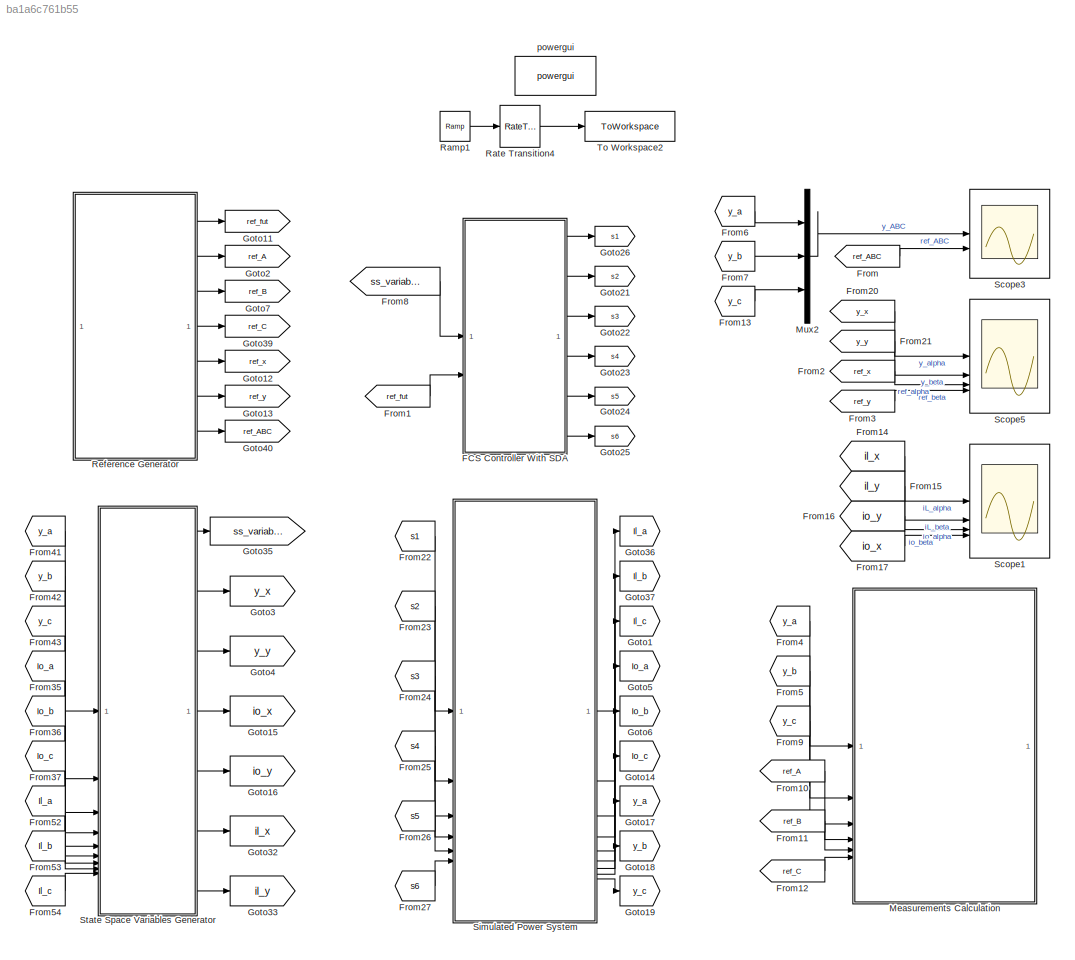
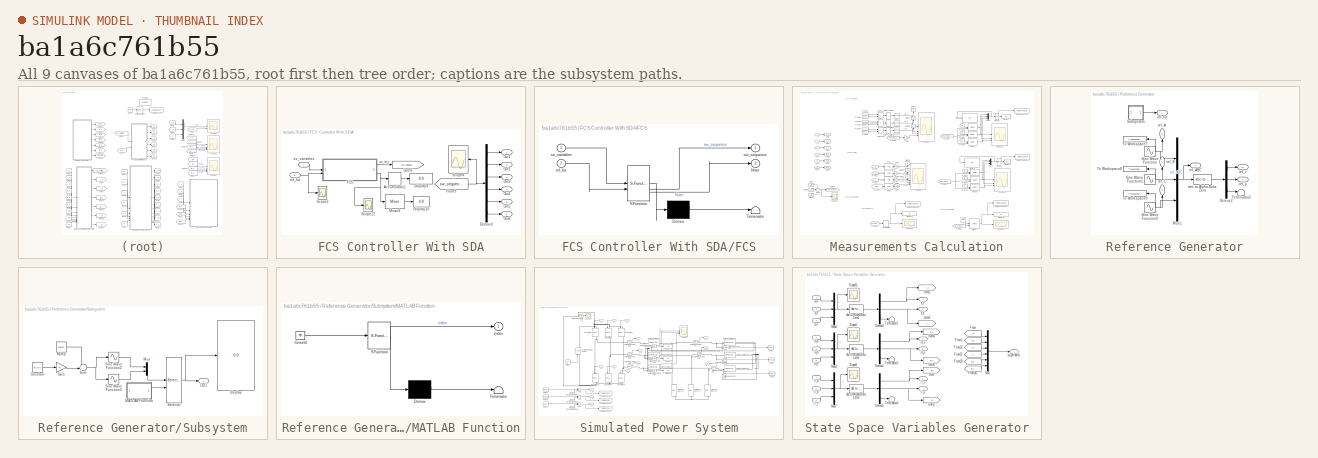
[diagram: thumbnail index - all 9 canvases of the model, root first then tree order]
MODEL slx_ba1a6c761b55
KIND model
CONFIG AbsTol = auto
CONFIG EnableMultiTasking = off
CONFIG FixedStep = Ts
CONFIG InitFcn = script_SDA
CONFIG MaxStep = auto
CONFIG MinStep = auto
CONFIG RelTol = 1e-3
CONFIG SampleTimeConstraint = Unconstrained
CONFIG SolverName = VariableStepAuto
CONFIG StartTime = 0.0
CONFIG StopFcn = % t = table(out.seq, out.t_sim, 'VariableNames', ["Sequência de Vetores","Tempo de Simulação"]);\n% writetable(t,'<userpath>\OneDrive\Documentos\UFSC\COBEP 2023\sequencia_states.xlsx','Sheet','sim_CF_gw')\n% winopen('<userpath>\OneDrive\Documentos\UFSC\COBEP 2023\sequencia_states.xlsx')\n% \n% nome_arq = sprintf("gdq_caso-1_7.csv");\n% writematrix([out.y_d out.y_q out.y_a out.y_b out.y_c out.ref_a out....<+267ch>
CONFIG StopTime = 3*(1/freqHzSin)
BLOCK [SubSystem] FCS Controller With SDA
BLOCK [DiscreteIntegrator] FCS Controller With SDA/Accumulator1
  ICPrevOutput = DiscIntNeverNeededParam
  ICPrevScaledInput = DiscIntNeverNeededParam
  InitialConditionSetting = Auto
  IntegratorMethod = Accumulation: Forward Euler
  SampleTime = Ts
BLOCK [Demux] FCS Controller With SDA/Demux4
  Outputs = 6
BLOCK [Display] FCS Controller With SDA/Display10
  Decimation = 1
BLOCK [Display] FCS Controller With SDA/Display9
  Decimation = 1
BLOCK [SubSystem] FCS Controller With SDA/FCS
  ErrorFcn = Stateflow.Translate.translate
  PermitHierarchicalResolution = ExplicitOnly
  SFBlockType = MATLAB Function
  SystemSampleTime = Ts
  TreatAsAtomicUnit = on
BLOCK [Demux] FCS Controller With SDA/FCS/ Demux 
  Outputs = 1
BLOCK [S-Function] FCS Controller With SDA/FCS/ SFunction 
  EnableBusSupport = on
  FunctionName = sf_sfun
  Parameters = Gamma,H,Niter_max,UpsilonT,W_inv,lSTE,p,u_max,u_min
  PortCounts = [2 3]
  SFcnIsStateOwnerBlock = off
  SFunctionDeploymentMode = off
  Tag = Stateflow S-Function 1
BLOCK [Terminator] FCS Controller With SDA/FCS/ Terminator 
BLOCK [Outport] FCS Controller With SDA/FCS/Niter
  Port = 2
BLOCK [Inport] FCS Controller With SDA/FCS/ref_fut
  Port = 2
BLOCK [Inport] FCS Controller With SDA/FCS/ss_variables
BLOCK [Outport] FCS Controller With SDA/FCS/sw_sequence
BLOCK [From] FCS Controller With SDA/From9
  GotoTag = sw_sequence
BLOCK [Goto] FCS Controller With SDA/Goto6
  GotoTag = sw_sequence
BLOCK [Reference] FCS Controller With SDA/Mean9  REF=dspstat3/Mean
  SourceBlock = dspstat3/Mean
  SourceType = Mean
  UserDataPersistent = on
BLOCK [Outport] FCS Controller With SDA/Out1
BLOCK [Outport] FCS Controller With SDA/Out2
  Port = 2
BLOCK [Outport] FCS Controller With SDA/Out3
  Port = 3
BLOCK [Outport] FCS Controller With SDA/Out4
  Port = 4
BLOCK [Outport] FCS Controller With SDA/Out5
  Port = 5
BLOCK [Outport] FCS Controller With SDA/Out6
  Port = 6
BLOCK [Scope] FCS Controller With SDA/Scope12
  Floating = off
  NumInputPorts = 1
  ScopeSpecificationString = Simulink.scopes.TimeScopeBlockCfg('CurrentConfiguration', extmgr.ConfigurationSet(extmgr.Configuration('Core','General UI',true,'FigureColor',[1 1 1]),extmgr.Configuration('Core','Source UI',true),extmgr.Configuration('Sources','WiredSimulink',true,'DataLoggingVariableName','ScopeData3'),extmgr.Configuration('Visuals','Time Domain',true,'SerializedDisplays',{struct('MinYLimReal','-64.25','MaxYLimR...<+2040ch>
BLOCK [Scope] FCS Controller With SDA/Scope2
  Floating = off
  NumInputPorts = 1
  ScopeSpecificationString = Simulink.scopes.TimeScopeBlockCfg('CurrentConfiguration', extmgr.ConfigurationSet(extmgr.Configuration('Core','General UI',true,'FigureColor',[1 1 1]),extmgr.Configuration('Core','Source UI',true),extmgr.Configuration('Sources','WiredSimulink',true,'DataLoggingVariableName','ScopeData1'),extmgr.Configuration('Visuals','Time Domain',true,'SerializedDisplays',{struct('MinYLimReal','157.88218','MaxYL...<+2119ch>
BLOCK [Scope] FCS Controller With SDA/Scope4
  Floating = off
  NameLocation = top
  NumInputPorts = 1
  ScopeSpecificationString = Simulink.scopes.TimeScopeBlockCfg('CurrentConfiguration', extmgr.ConfigurationSet(extmgr.Configuration('Core','General UI',true,'FigureColor',[1 1 1]),extmgr.Configuration('Core','Source UI',true),extmgr.Configuration('Sources','WiredSimulink',true,'DataLoggingVariableName','ScopeData1'),extmgr.Configuration('Visuals','Time Domain',true,'SerializedDisplays',{struct('MinYLimReal','-0.125','MaxYLimR...<+2117ch>
BLOCK [Inport] FCS Controller With SDA/ref_fut
  Port = 2
BLOCK [Inport] FCS Controller With SDA/ss_variables
BLOCK [From] From
  GotoTag = ref_ABC
BLOCK [From] From1
  GotoTag = ref_fut
BLOCK [From] From10
  GotoTag = ref_A
BLOCK [From] From11
  GotoTag = ref_B
BLOCK [From] From12
  GotoTag = ref_C
BLOCK [From] From13
  GotoTag = y_c
BLOCK [From] From14
  GotoTag = il_x
BLOCK [From] From15
  GotoTag = il_y
BLOCK [From] From16
  GotoTag = io_y
BLOCK [From] From17
  GotoTag = io_x
BLOCK [From] From2
  GotoTag = ref_x
BLOCK [From] From20
  GotoTag = y_x
BLOCK [From] From21
  GotoTag = y_y
BLOCK [From] From22
  GotoTag = s1
  NameLocation = top
BLOCK [From] From23
  GotoTag = s2
  NameLocation = top
BLOCK [From] From24
  GotoTag = s3
  NameLocation = top
BLOCK [From] From25
  GotoTag = s4
  NameLocation = top
BLOCK [From] From26
  GotoTag = s5
  NameLocation = top
BLOCK [From] From27
  GotoTag = s6
  NameLocation = top
BLOCK [From] From3
  GotoTag = ref_y
BLOCK [From] From35
  GotoTag = Io_a
BLOCK [From] From36
  GotoTag = Io_b
BLOCK [From] From37
  GotoTag = Io_c
BLOCK [From] From4
  GotoTag = y_a
BLOCK [From] From41
  GotoTag = y_a
BLOCK [From] From42
  GotoTag = y_b
BLOCK [From] From43
  GotoTag = y_c
BLOCK [From] From5
  GotoTag = y_b
BLOCK [From] From52
  GotoTag = Il_a
BLOCK [From] From53
  GotoTag = Il_b
BLOCK [From] From54
  GotoTag = Il_c
BLOCK [From] From6
  GotoTag = y_a
BLOCK [From] From7
  GotoTag = y_b
BLOCK [From] From8
  GotoTag = ss_variables
BLOCK [From] From9
  GotoTag = y_c
BLOCK [Goto] Goto1
  GotoTag = Il_c
BLOCK [Goto] Goto11
  GotoTag = ref_fut
BLOCK [Goto] Goto12
  GotoTag = ref_x
BLOCK [Goto] Goto13
  GotoTag = ref_y
BLOCK [Goto] Goto14
  GotoTag = Io_c
BLOCK [Goto] Goto15
  GotoTag = io_x
BLOCK [Goto] Goto16
  GotoTag = io_y
BLOCK [Goto] Goto17
  GotoTag = y_a
BLOCK [Goto] Goto18
  GotoTag = y_b
BLOCK [Goto] Goto19
  GotoTag = y_c
BLOCK [Goto] Goto2
  GotoTag = ref_A
BLOCK [Goto] Goto21
  GotoTag = s2
BLOCK [Goto] Goto22
  GotoTag = s3
BLOCK [Goto] Goto23
  GotoTag = s4
BLOCK [Goto] Goto24
  GotoTag = s5
BLOCK [Goto] Goto25
  GotoTag = s6
BLOCK [Goto] Goto26
  GotoTag = s1
BLOCK [Goto] Goto3
  GotoTag = y_x
BLOCK [Goto] Goto32
  GotoTag = il_x
BLOCK [Goto] Goto33
  GotoTag = il_y
BLOCK [Goto] Goto35
  GotoTag = ss_variables
BLOCK [Goto] Goto36
  GotoTag = Il_a
BLOCK [Goto] Goto37
  GotoTag = Il_b
BLOCK [Goto] Goto39
  GotoTag = ref_C
BLOCK [Goto] Goto4
  GotoTag = y_y
BLOCK [Goto] Goto40
  GotoTag = ref_ABC
BLOCK [Goto] Goto5
  GotoTag = Io_a
BLOCK [Goto] Goto6
  GotoTag = Io_b
BLOCK [Goto] Goto7
  GotoTag = ref_B
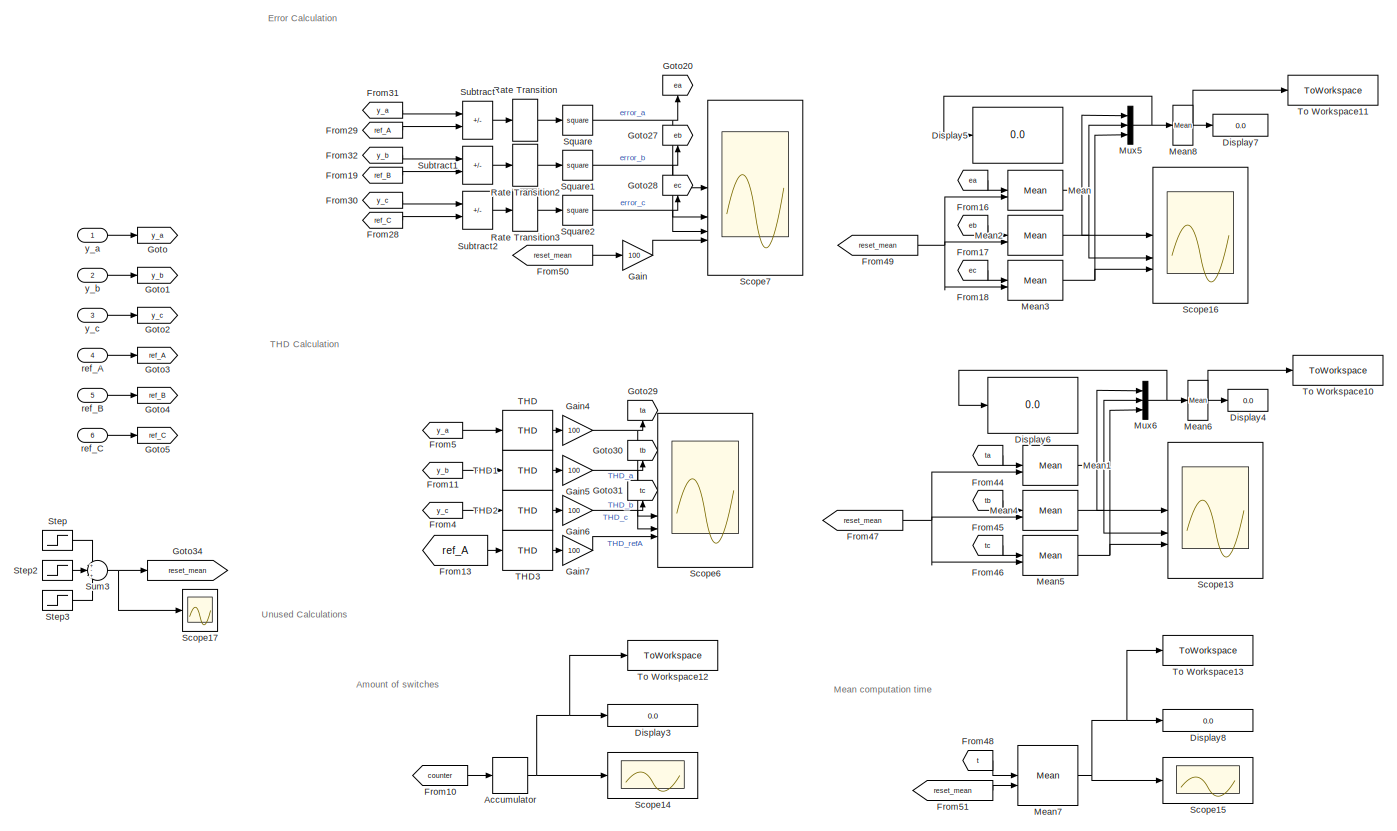
[diagram: Measurements Calculation - part 1/1, most of the canvas]
BLOCK [SubSystem] Measurements Calculation
BLOCK [DiscreteIntegrator] Measurements Calculation/Accumulator
  Commented = on
  ICPrevOutput = DiscIntNeverNeededParam
  ICPrevScaledInput = DiscIntNeverNeededParam
  InitialConditionSetting = Auto
  IntegratorMethod = Accumulation: Forward Euler
  SampleTime = -1
BLOCK [Display] Measurements Calculation/Display3
  Commented = on
  Decimation = 1
  Format = long
BLOCK [Display] Measurements Calculation/Display4
  Decimation = 1
BLOCK [Display] Measurements Calculation/Display5
  Decimation = 1
BLOCK [Display] Measurements Calculation/Display6
  Decimation = 1
BLOCK [Display] Measurements Calculation/Display7
  Decimation = 1
BLOCK [Display] Measurements Calculation/Display8
  Commented = on
  Decimation = 1
  Format = short_e
BLOCK [From] Measurements Calculation/From10
  Commented = on
  GotoTag = counter
BLOCK [From] Measurements Calculation/From11
  GotoTag = y_b
BLOCK [From] Measurements Calculation/From13
  GotoTag = ref_A
BLOCK [From] Measurements Calculation/From16
  GotoTag = ea
BLOCK [From] Measurements Calculation/From17
  GotoTag = eb
BLOCK [From] Measurements Calculation/From18
  GotoTag = ec
BLOCK [From] Measurements Calculation/From19
  GotoTag = ref_B
BLOCK [From] Measurements Calculation/From28
  GotoTag = ref_C
BLOCK [From] Measurements Calculation/From29
  GotoTag = ref_A
BLOCK [From] Measurements Calculation/From30
  GotoTag = y_c
BLOCK [From] Measurements Calculation/From31
  GotoTag = y_a
BLOCK [From] Measurements Calculation/From32
  GotoTag = y_b
BLOCK [From] Measurements Calculation/From4
  GotoTag = y_c
BLOCK [From] Measurements Calculation/From44
  GotoTag = ta
BLOCK [From] Measurements Calculation/From45
  GotoTag = tb
BLOCK [From] Measurements Calculation/From46
  GotoTag = tc
BLOCK [From] Measurements Calculation/From47
  GotoTag = reset_mean
BLOCK [From] Measurements Calculation/From48
  Commented = on
  GotoTag = t
BLOCK [From] Measurements Calculation/From49
  GotoTag = reset_mean
BLOCK [From] Measurements Calculation/From5
  GotoTag = y_a
BLOCK [From] Measurements Calculation/From50
  GotoTag = reset_mean
BLOCK [From] Measurements Calculation/From51
  Commented = on
  GotoTag = reset_mean
BLOCK [Gain] Measurements Calculation/Gain
  Gain = 100
BLOCK [Gain] Measurements Calculation/Gain4
  Gain = 100
BLOCK [Gain] Measurements Calculation/Gain5
  Gain = 100
BLOCK [Gain] Measurements Calculation/Gain6
  Gain = 100
BLOCK [Gain] Measurements Calculation/Gain7
  Gain = 100
BLOCK [Goto] Measurements Calculation/Goto
  GotoTag = y_a
BLOCK [Goto] Measurements Calculation/Goto1
  GotoTag = y_b
BLOCK [Goto] Measurements Calculation/Goto2
  GotoTag = y_c
BLOCK [Goto] Measurements Calculation/Goto20
  GotoTag = ea
  NameLocation = right
BLOCK [Goto] Measurements Calculation/Goto27
  GotoTag = eb
  NameLocation = right
BLOCK [Goto] Measurements Calculation/Goto28
  GotoTag = ec
  NameLocation = right
BLOCK [Goto] Measurements Calculation/Goto29
  GotoTag = ta
  NameLocation = right
BLOCK [Goto] Measurements Calculation/Goto3
  GotoTag = ref_A
BLOCK [Goto] Measurements Calculation/Goto30
  GotoTag = tb
  NameLocation = right
BLOCK [Goto] Measurements Calculation/Goto31
  GotoTag = tc
  NameLocation = right
BLOCK [Goto] Measurements Calculation/Goto34
  GotoTag = reset_mean
BLOCK [Goto] Measurements Calculation/Goto4
  GotoTag = ref_B
BLOCK [Goto] Measurements Calculation/Goto5
  GotoTag = ref_C
BLOCK [Reference] Measurements Calculation/Mean  REF=dspstat3/Mean
  SourceBlock = dspstat3/Mean
  SourceType = Mean
  UserDataPersistent = on
BLOCK [Reference] Measurements Calculation/Mean1  REF=dspstat3/Mean
  SourceBlock = dspstat3/Mean
  SourceType = Mean
  UserDataPersistent = on
BLOCK [Reference] Measurements Calculation/Mean2  REF=dspstat3/Mean
  SourceBlock = dspstat3/Mean
  SourceType = Mean
  UserDataPersistent = on
BLOCK [Reference] Measurements Calculation/Mean3  REF=dspstat3/Mean
  SourceBlock = dspstat3/Mean
  SourceType = Mean
  UserDataPersistent = on
BLOCK [Reference] Measurements Calculation/Mean4  REF=dspstat3/Mean
  SourceBlock = dspstat3/Mean
  SourceType = Mean
  UserDataPersistent = on
BLOCK [Reference] Measurements Calculation/Mean5  REF=dspstat3/Mean
  SourceBlock = dspstat3/Mean
  SourceType = Mean
  UserDataPersistent = on
BLOCK [Reference] Measurements Calculation/Mean6  REF=dspstat3/Mean
  SourceBlock = dspstat3/Mean
  SourceType = Mean
  UserDataPersistent = on
BLOCK [Reference] Measurements Calculation/Mean7  REF=dspstat3/Mean
  Commented = on
  SourceBlock = dspstat3/Mean
  SourceType = Mean
  UserDataPersistent = on
BLOCK [Reference] Measurements Calculation/Mean8  REF=dspstat3/Mean
  SourceBlock = dspstat3/Mean
  SourceType = Mean
  UserDataPersistent = on
BLOCK [Mux] Measurements Calculation/Mux5
  DisplayOption = bar
  Inputs = 3
BLOCK [Mux] Measurements Calculation/Mux6
  DisplayOption = bar
  Inputs = 3
BLOCK [RateTransition] Measurements Calculation/Rate Transition
  OutPortSampleTime = Ts
BLOCK [RateTransition] Measurements Calculation/Rate Transition2
  OutPortSampleTime = Ts
BLOCK [RateTransition] Measurements Calculation/Rate Transition3
  OutPortSampleTime = Ts
BLOCK [Scope] Measurements Calculation/Scope13
  Floating = off
  NumInputPorts = 3
  ScopeSpecificationString = Simulink.scopes.TimeScopeBlockCfg('CurrentConfiguration', extmgr.ConfigurationSet(extmgr.Configuration('Core','General UI',true,'FigureColor',[1 1 1]),extmgr.Configuration('Core','Source UI',true),extmgr.Configuration('Sources','WiredSimulink',true,'DataLoggingVariableName','ScopeData2'),extmgr.Configuration('Visuals','Time Domain',true,'SerializedDisplays',{struct('MinYLimReal','-2.0111','MaxYLim...<+2603ch>
BLOCK [Scope] Measurements Calculation/Scope14
  Commented = on
  Floating = off
  NumInputPorts = 1
  ScopeSpecificationString = Simulink.scopes.TimeScopeBlockCfg('CurrentConfiguration', extmgr.ConfigurationSet(extmgr.Configuration('Core','General UI',true,'FigureColor',[1 1 1]),extmgr.Configuration('Core','Source UI',true),extmgr.Configuration('Sources','WiredSimulink',true,'DataLoggingVariableName','ScopeData1'),extmgr.Configuration('Visuals','Time Domain',true,'SerializedDisplays',{struct('MinYLimReal','-5083.25','MaxYLi...<+2583ch>
BLOCK [Scope] Measurements Calculation/Scope15
  Commented = on
  Floating = off
  NumInputPorts = 1
  ScopeSpecificationString = Simulink.scopes.TimeScopeBlockCfg('CurrentConfiguration', extmgr.ConfigurationSet(extmgr.Configuration('Core','General UI',true,'FigureColor',[1 1 1]),extmgr.Configuration('Core','Source UI',true),extmgr.Configuration('Sources','WiredSimulink',true,'DataLoggingVariableName','ScopeData4'),extmgr.Configuration('Visuals','Time Domain',true,'SerializedDisplays',{struct('MinYLimReal','-0.01387','MaxYLi...<+2549ch>
BLOCK [Scope] Measurements Calculation/Scope16
  Floating = off
  NumInputPorts = 3
  ScopeSpecificationString = Simulink.scopes.TimeScopeBlockCfg('CurrentConfiguration', extmgr.ConfigurationSet(extmgr.Configuration('Core','General UI',true,'FigureColor',[1 1 1]),extmgr.Configuration('Core','Source UI',true),extmgr.Configuration('Sources','WiredSimulink',true,'DataLoggingVariableName','ScopeData1'),extmgr.Configuration('Visuals','Time Domain',true,'SerializedDisplays',{struct('MinYLimReal','-5.02568','MaxYLi...<+2644ch>
BLOCK [Scope] Measurements Calculation/Scope17
  Floating = off
  NumInputPorts = 1
  ScopeSpecificationString = Simulink.scopes.TimeScopeBlockCfg('CurrentConfiguration', extmgr.ConfigurationSet(extmgr.Configuration('Core','General UI',true,'FigureColor',[1 1 1]),extmgr.Configuration('Core','Source UI',true),extmgr.Configuration('Sources','WiredSimulink',true,'DataLoggingVariableName','ScopeData1'),extmgr.Configuration('Visuals','Time Domain',true,'SerializedDisplays',{struct('MinYLimReal','-0.125','MaxYLimR...<+2553ch>
BLOCK [Scope] Measurements Calculation/Scope6
  Floating = off
  NumInputPorts = 4
  ScopeSpecificationString = Simulink.scopes.TimeScopeBlockCfg('CurrentConfiguration', extmgr.ConfigurationSet(extmgr.Configuration('Core','General UI',true,'FigureColor',[1 1 1]),extmgr.Configuration('Core','Source UI',true),extmgr.Configuration('Sources','WiredSimulink',true,'DataLoggingVariableName','ScopeData5'),extmgr.Configuration('Visuals','Time Domain',true,'SerializedDisplays',{struct('MinYLimReal','-1.90918','MaxYLi...<+2570ch>
BLOCK [Scope] Measurements Calculation/Scope7
  Floating = off
  NumInputPorts = 4
  ScopeSpecificationString = Simulink.scopes.TimeScopeBlockCfg('CurrentConfiguration', extmgr.ConfigurationSet(extmgr.Configuration('Core','General UI',true,'FigureColor',[1 1 1]),extmgr.Configuration('Core','Source UI',true),extmgr.Configuration('Sources','WiredSimulink',true,'DataLoggingVariableName','ScopeData6'),extmgr.Configuration('Visuals','Time Domain',true,'SerializedDisplays',{struct('MinYLimReal','-10.08183','MaxYL...<+2213ch>
BLOCK [Math] Measurements Calculation/Square
  Operator = square
BLOCK [Math] Measurements Calculation/Square1
  Operator = square
BLOCK [Math] Measurements Calculation/Square2
  Operator = square
BLOCK [Step] Measurements Calculation/Step
  SampleTime = Ts
  Time = (1/freqHzSin)
BLOCK [Step] Measurements Calculation/Step2
  SampleTime = Ts
  Time = (1/freqHzSin)+Ts
BLOCK [Step] Measurements Calculation/Step3
  SampleTime = Ts
  Time = (1/freqHzSin)*2
BLOCK [Sum] Measurements Calculation/Subtract
  IconShape = rectangular
  Inputs = +-
BLOCK [Sum] Measurements Calculation/Subtract1
  IconShape = rectangular
  Inputs = +-
BLOCK [Sum] Measurements Calculation/Subtract2
  IconShape = rectangular
  Inputs = +-
BLOCK [Sum] Measurements Calculation/Sum3
  Inputs = +-+
BLOCK [Reference] Measurements Calculation/THD  REF=spsTHDLib/THD
  LibrarySourceBlock = sps_lib/Sensors and Measurements/THD
  SourceBlock = spsTHDLib/THD
  SourceType = THD
BLOCK [Reference] Measurements Calculation/THD1  REF=spsTHDLib/THD
  LibrarySourceBlock = sps_lib/Sensors and Measurements/THD
  SourceBlock = spsTHDLib/THD
  SourceType = THD
BLOCK [Reference] Measurements Calculation/THD2  REF=spsTHDLib/THD
  LibrarySourceBlock = sps_lib/Sensors and Measurements/THD
  SourceBlock = spsTHDLib/THD
  SourceType = THD
BLOCK [Reference] Measurements Calculation/THD3  REF=spsTHDLib/THD
  LibrarySourceBlock = sps_lib/Sensors and Measurements/THD
  SourceBlock = spsTHDLib/THD
  SourceType = THD
BLOCK [ToWorkspace] Measurements Calculation/To Workspace10
  FixptAsFi = on
  MaxDataPoints = 1
  SampleTime = -1
  VariableName = thd
BLOCK [ToWorkspace] Measurements Calculation/To Workspace11
  FixptAsFi = on
  MaxDataPoints = 1
  SampleTime = -1
  VariableName = mse
BLOCK [ToWorkspace] Measurements Calculation/To Workspace12
  Commented = on
  FixptAsFi = on
  MaxDataPoints = 1
  SampleTime = -1
  VariableName = csw
BLOCK [ToWorkspace] Measurements Calculation/To Workspace13
  Commented = on
  FixptAsFi = on
  MaxDataPoints = 1
  SampleTime = -1
  VariableName = tavg
BLOCK [Inport] Measurements Calculation/ref_A
  Port = 4
BLOCK [Inport] Measurements Calculation/ref_B
  Port = 5
BLOCK [Inport] Measurements Calculation/ref_C
  Port = 6
BLOCK [Inport] Measurements Calculation/y_a
BLOCK [Inport] Measurements Calculation/y_b
  Port = 2
BLOCK [Inport] Measurements Calculation/y_c
  Port = 3
BLOCK [Mux] Mux2
  DisplayOption = bar
  Inputs = 3
BLOCK [Reference] Ramp1  REF=simulink/Sources/Ramp
  SourceBlock = simulink/Sources/Ramp
  SourceType = Ramp
BLOCK [RateTransition] Rate Transition4
  OutPortSampleTime = Ts
BLOCK [SubSystem] Reference Generator
BLOCK [Demux] Reference Generator/Demux2
  Outputs = 3
BLOCK [Mux] Reference Generator/Mux1
  DisplayOption = bar
  Inputs = 3
BLOCK [Sin] Reference Generator/Sine Wave Function
  Amplitude = Vo_ref_amp
  Frequency = 2*pi*50
  SampleTime = Ts
BLOCK [Sin] Reference Generator/Sine Wave Function1
  Amplitude = Vo_ref_amp
  Frequency = 2*pi*50
  Phase = -2*pi/3
  SampleTime = Ts
BLOCK [Sin] Reference Generator/Sine Wave Function2
  Amplitude = Vo_ref_amp
  Frequency = 2*pi*50
  Phase = 2*pi/3
  SampleTime = Ts
BLOCK [SubSystem] Reference Generator/Subsystem
BLOCK [Constant] Reference Generator/Subsystem/Constant
  Value = N1:N2
BLOCK [Display] Reference Generator/Subsystem/Display
  Decimation = 1
BLOCK [Gain] Reference Generator/Subsystem/Gain
  Gain = Ts
BLOCK [SubSystem] Reference Generator/Subsystem/MATLAB Function
  ErrorFcn = Stateflow.Translate.translate
  LibrarySourceBlock = simulink/User-Defined\nFunctions/MATLAB Function
  PermitHierarchicalResolution = ExplicitOnly
  SFBlockType = MATLAB Function
  TreatAsAtomicUnit = on
BLOCK [Demux] Reference Generator/Subsystem/MATLAB Function/ Demux 
  Outputs = 1
BLOCK [Ground] Reference Generator/Subsystem/MATLAB Function/ Ground 
BLOCK [S-Function] Reference Generator/Subsystem/MATLAB Function/ SFunction 
  EnableBusSupport = on
  FunctionName = sf_sfun
  Parameters = N
  PortCounts = [1 2]
  SFcnIsStateOwnerBlock = off
  SFunctionDeploymentMode = off
  Tag = Stateflow S-Function 2
BLOCK [Terminator] Reference Generator/Subsystem/MATLAB Function/ Terminator 
BLOCK [Outport] Reference Generator/Subsystem/MATLAB Function/index
BLOCK [Mux] Reference Generator/Subsystem/Mux
  DisplayOption = bar
  Inputs = 2
BLOCK [Outport] Reference Generator/Subsystem/Out1
BLOCK [Reference] Reference Generator/Subsystem/Ramp  REF=simulink/Sources/Ramp
  SourceBlock = simulink/Sources/Ramp
  SourceType = Ramp
BLOCK [Selector] Reference Generator/Subsystem/Selector
  IndexOptions = Index vector (port)
  Indices = [1:N]
  InputPortWidth = 2*N
  OutputSizes = 1
BLOCK [Sin] Reference Generator/Subsystem/Sine Wave Function2
  Amplitude = Vo_ref_amp
  Frequency = 2*pi*50
  SampleTime = Ts
  TimeSource = Use external signal
BLOCK [Sin] Reference Generator/Subsystem/Sine Wave Function3
  Amplitude = Vo_ref_amp
  Frequency = 2*pi*50
  Phase = -pi/2
  SampleTime = Ts
  TimeSource = Use external signal
BLOCK [Sum] Reference Generator/Subsystem/Sum
  Inputs = ++|
BLOCK [Terminator] Reference Generator/Terminator2
BLOCK [ToWorkspace] Reference Generator/To Workspace7
  FixptAsFi = on
  MaxDataPoints = inf
  NameLocation = top
  SampleTime = Ts
  Save2DSignal = 2-D array (concatenate along first dimension)
  VariableName = ref_a
BLOCK [ToWorkspace] Reference Generator/To Workspace8
  FixptAsFi = on
  MaxDataPoints = inf
  NameLocation = top
  SampleTime = Ts
  Save2DSignal = 2-D array (concatenate along first dimension)
  VariableName = ref_b
BLOCK [ToWorkspace] Reference Generator/To Workspace9
  FixptAsFi = on
  MaxDataPoints = inf
  NameLocation = top
  SampleTime = Ts
  Save2DSignal = 2-D array (concatenate along first dimension)
  VariableName = ref_c
BLOCK [Reference] Reference Generator/abc to Alpha-Beta-Zero  REF=spsabctoAlphaBetaZeroLib/abc to
Alpha-Beta-Zero
  LibrarySourceBlock = sps_lib/Control/abc to\nAlpha-Beta-Zero
  SourceBlock = spsabctoAlphaBetaZeroLib/abc to\nAlpha-Beta-Zero
  SourceType = abc to Alpha-Beta-Zero Transformation
BLOCK [Outport] Reference Generator/ref_A
  NameLocation = right
  Port = 2
BLOCK [Outport] Reference Generator/ref_ABC
  NameLocation = top
  Port = 7
BLOCK [Outport] Reference Generator/ref_B
  NameLocation = right
  Port = 3
BLOCK [Outport] Reference Generator/ref_C
  NameLocation = right
  Port = 4
BLOCK [Outport] Reference Generator/ref_fut
  NameLocation = top
BLOCK [Outport] Reference Generator/ref_x
  NameLocation = top
  Port = 5
BLOCK [Outport] Reference Generator/ref_y
  NameLocation = top
  Port = 6
BLOCK [Scope] Scope1
  Floating = off
  NumInputPorts = 4
  ScopeSpecificationString = Simulink.scopes.TimeScopeBlockCfg('CurrentConfiguration', extmgr.ConfigurationSet(extmgr.Configuration('Core','General UI',true,'FigureColor',[1 1 1]),extmgr.Configuration('Core','Source UI',true),extmgr.Configuration('Sources','WiredSimulink',true,'DataLoggingVariableName','ScopeData1'),extmgr.Configuration('Visuals','Time Domain',true,'SerializedDisplays',{struct('MinYLimReal','-239.74991','MaxY...<+2119ch>
BLOCK [Scope] Scope3
  Floating = off
  NumInputPorts = 2
  ScopeSpecificationString = Simulink.scopes.TimeScopeBlockCfg('CurrentConfiguration', extmgr.ConfigurationSet(extmgr.Configuration('Core','General UI',true,'FigureColor',[1 1 1]),extmgr.Configuration('Core','Source UI',true),extmgr.Configuration('Sources','WiredSimulink',true,'DataLoggingVariableName','ScopeData2'),extmgr.Configuration('Visuals','Time Domain',true,'SerializedDisplays',{struct('MinYLimReal','-174.85531','MaxY...<+2128ch>
BLOCK [Scope] Scope5
  Floating = off
  NumInputPorts = 4
  ScopeSpecificationString = Simulink.scopes.TimeScopeBlockCfg('CurrentConfiguration', extmgr.ConfigurationSet(extmgr.Configuration('Core','General UI',true,'FigureColor',[1 1 1]),extmgr.Configuration('Core','Source UI',true),extmgr.Configuration('Sources','WiredSimulink',true,'DataLoggingVariableName','ScopeData1'),extmgr.Configuration('Visuals','Time Domain',true,'SerializedDisplays',{struct('MinYLimReal','-239.74991','MaxY...<+2119ch>
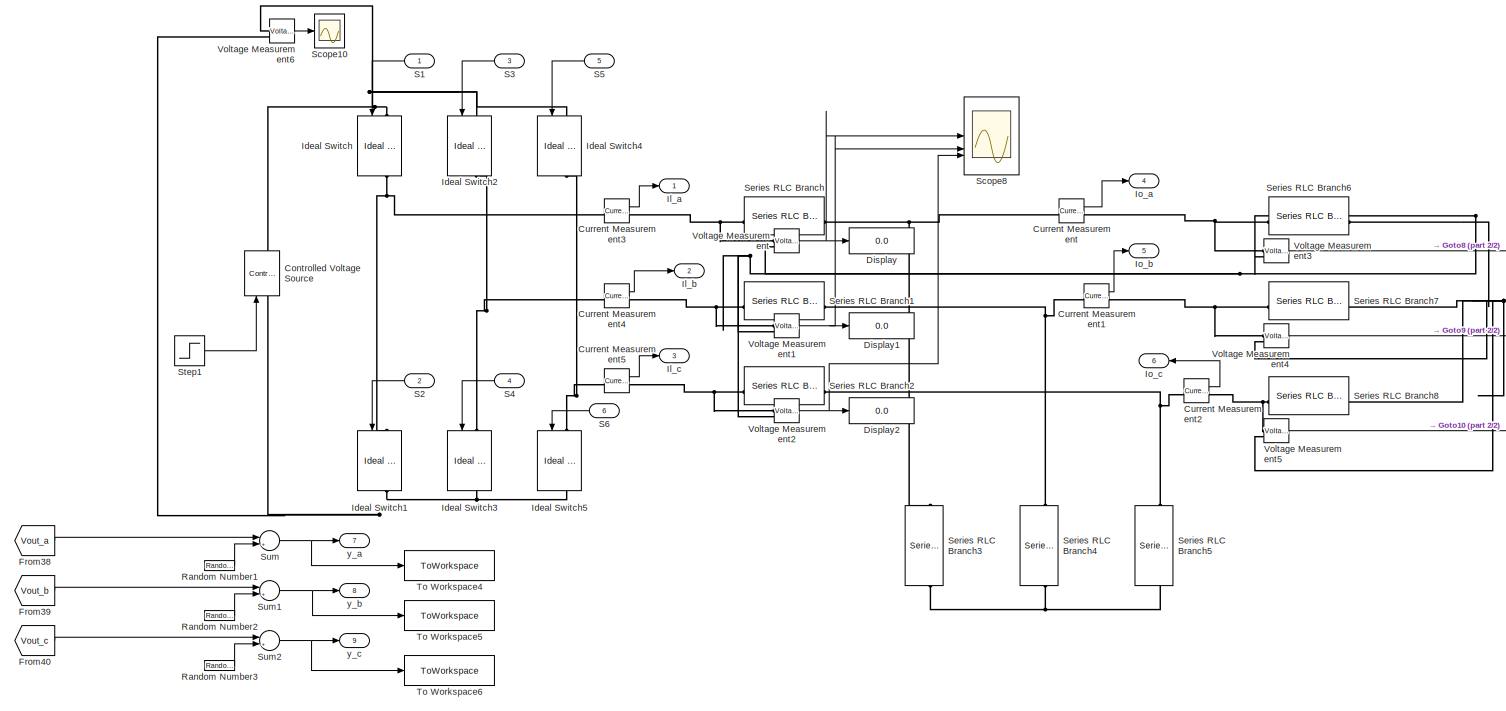
[diagram: Simulated Power System - part 1/2, most of the canvas]
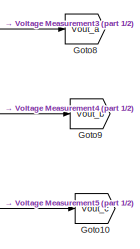
[diagram: Simulated Power System - part 2/2, middle right region]
BLOCK [SubSystem] Simulated Power System
BLOCK [Reference] Simulated Power System/Controlled Voltage Source  REF=spsControlledVoltageSourceLib/Controlled Voltage Source
  LibrarySourceBlock = sps_lib/Sources/Controlled Voltage Source
  SourceBlock = spsControlledVoltageSourceLib/Controlled Voltage Source
  SourceType = Controlled Voltage Source
BLOCK [Reference] Simulated Power System/Current Measurement  REF=spsCurrentMeasurementLib/Current Measurement
  LibrarySourceBlock = sps_lib/Sensors and Measurements/Current Measurement
  SourceBlock = spsCurrentMeasurementLib/Current Measurement
  SourceType = Current Measurement
  UserDataPersistent = on
BLOCK [Reference] Simulated Power System/Current Measurement1  REF=spsCurrentMeasurementLib/Current Measurement
  LibrarySourceBlock = sps_lib/Sensors and Measurements/Current Measurement
  SourceBlock = spsCurrentMeasurementLib/Current Measurement
  SourceType = Current Measurement
  UserDataPersistent = on
BLOCK [Reference] Simulated Power System/Current Measurement2  REF=spsCurrentMeasurementLib/Current Measurement
  LibrarySourceBlock = sps_lib/Sensors and Measurements/Current Measurement
  SourceBlock = spsCurrentMeasurementLib/Current Measurement
  SourceType = Current Measurement
  UserDataPersistent = on
BLOCK [Reference] Simulated Power System/Current Measurement3  REF=spsCurrentMeasurementLib/Current Measurement
  LibrarySourceBlock = sps_lib/Sensors and Measurements/Current Measurement
  SourceBlock = spsCurrentMeasurementLib/Current Measurement
  SourceType = Current Measurement
  UserDataPersistent = on
BLOCK [Reference] Simulated Power System/Current Measurement4  REF=spsCurrentMeasurementLib/Current Measurement
  LibrarySourceBlock = sps_lib/Sensors and Measurements/Current Measurement
  SourceBlock = spsCurrentMeasurementLib/Current Measurement
  SourceType = Current Measurement
  UserDataPersistent = on
BLOCK [Reference] Simulated Power System/Current Measurement5  REF=spsCurrentMeasurementLib/Current Measurement
  LibrarySourceBlock = sps_lib/Sensors and Measurements/Current Measurement
  SourceBlock = spsCurrentMeasurementLib/Current Measurement
  SourceType = Current Measurement
  UserDataPersistent = on
BLOCK [Display] Simulated Power System/Display
  Decimation = 1
BLOCK [Display] Simulated Power System/Display1
  Decimation = 1
BLOCK [Display] Simulated Power System/Display2
  Decimation = 1
BLOCK [From] Simulated Power System/From38
  GotoTag = Vout_a
BLOCK [From] Simulated Power System/From39
  GotoTag = Vout_b
BLOCK [From] Simulated Power System/From40
  GotoTag = Vout_c
BLOCK [Goto] Simulated Power System/Goto10
  GotoTag = Vout_c
BLOCK [Goto] Simulated Power System/Goto8
  GotoTag = Vout_a
BLOCK [Goto] Simulated Power System/Goto9
  GotoTag = Vout_b
BLOCK [Reference] Simulated Power System/Ideal Switch  REF=spsIdealSwitchLib/Ideal Switch
  LibrarySourceBlock = sps_lib/Power Electronics/Ideal Switch
  NameLocation = left
  SourceBlock = spsIdealSwitchLib/Ideal Switch
  SourceType = Ideal Switch
BLOCK [Reference] Simulated Power System/Ideal Switch1  REF=spsIdealSwitchLib/Ideal Switch
  LibrarySourceBlock = sps_lib/Power Electronics/Ideal Switch
  NameLocation = left
  SourceBlock = spsIdealSwitchLib/Ideal Switch
  SourceType = Ideal Switch
BLOCK [Reference] Simulated Power System/Ideal Switch2  REF=spsIdealSwitchLib/Ideal Switch
  LibrarySourceBlock = sps_lib/Power Electronics/Ideal Switch
  NameLocation = left
  SourceBlock = spsIdealSwitchLib/Ideal Switch
  SourceType = Ideal Switch
BLOCK [Reference] Simulated Power System/Ideal Switch3  REF=spsIdealSwitchLib/Ideal Switch
  LibrarySourceBlock = sps_lib/Power Electronics/Ideal Switch
  NameLocation = left
  SourceBlock = spsIdealSwitchLib/Ideal Switch
  SourceType = Ideal Switch
BLOCK [Reference] Simulated Power System/Ideal Switch4  REF=spsIdealSwitchLib/Ideal Switch
  LibrarySourceBlock = sps_lib/Power Electronics/Ideal Switch
  NameLocation = left
  SourceBlock = spsIdealSwitchLib/Ideal Switch
  SourceType = Ideal Switch
BLOCK [Reference] Simulated Power System/Ideal Switch5  REF=spsIdealSwitchLib/Ideal Switch
  LibrarySourceBlock = sps_lib/Power Electronics/Ideal Switch
  NameLocation = left
  SourceBlock = spsIdealSwitchLib/Ideal Switch
  SourceType = Ideal Switch
BLOCK [Outport] Simulated Power System/Il_a
BLOCK [Outport] Simulated Power System/Il_b
  Port = 2
BLOCK [Outport] Simulated Power System/Il_c
  Port = 3
BLOCK [Outport] Simulated Power System/Io_a
  Port = 4
BLOCK [Outport] Simulated Power System/Io_b
  Port = 5
BLOCK [Outport] Simulated Power System/Io_c
  NameLocation = top
  Port = 6
BLOCK [RandomNumber] Simulated Power System/Random Number1
  SampleTime = Ts
  Variance = Vnoise
BLOCK [RandomNumber] Simulated Power System/Random Number2
  SampleTime = Ts
  Variance = Vnoise
BLOCK [RandomNumber] Simulated Power System/Random Number3
  SampleTime = Ts
  Variance = Vnoise
BLOCK [Inport] Simulated Power System/S1
BLOCK [Inport] Simulated Power System/S2
  Port = 2
BLOCK [Inport] Simulated Power System/S3
  Port = 3
BLOCK [Inport] Simulated Power System/S4
  Port = 4
BLOCK [Inport] Simulated Power System/S5
  Port = 5
BLOCK [Inport] Simulated Power System/S6
  Port = 6
BLOCK [Scope] Simulated Power System/Scope10
  Floating = off
  NumInputPorts = 1
  ScopeSpecificationString = Simulink.scopes.TimeScopeBlockCfg('CurrentConfiguration', extmgr.ConfigurationSet(extmgr.Configuration('Core','General UI',true,'FigureColor',[1 1 1]),extmgr.Configuration('Core','Source UI',true),extmgr.Configuration('Sources','WiredSimulink',true,'DataLoggingVariableName','ScopeData3'),extmgr.Configuration('Visuals','Time Domain',true,'SerializedDisplays',{struct('MinYLimReal','300.00000','MaxYL...<+2089ch>
BLOCK [Scope] Simulated Power System/Scope8
  Floating = off
  NumInputPorts = 3
  ScopeSpecificationString = Simulink.scopes.TimeScopeBlockCfg('CurrentConfiguration', extmgr.ConfigurationSet(extmgr.Configuration('Core','General UI',true,'FigureColor',[1 1 1]),extmgr.Configuration('Core','Source UI',true),extmgr.Configuration('Sources','WiredSimulink',true,'DataLoggingVariableName','ScopeData2'),extmgr.Configuration('Visuals','Time Domain',true,'SerializedDisplays',{struct('MinYLimReal','-538.39015','MaxY...<+2130ch>
BLOCK [Reference] Simulated Power System/Series RLC Branch  REF=spsSeriesRLCBranchLib/Series RLC Branch
  LibrarySourceBlock = sps_lib/Passives/Series RLC Branch
  SourceBlock = spsSeriesRLCBranchLib/Series RLC Branch
  SourceType = Series RLC Branch
BLOCK [Reference] Simulated Power System/Series RLC Branch1  REF=spsSeriesRLCBranchLib/Series RLC Branch
  LibrarySourceBlock = sps_lib/Passives/Series RLC Branch
  SourceBlock = spsSeriesRLCBranchLib/Series RLC Branch
  SourceType = Series RLC Branch
BLOCK [Reference] Simulated Power System/Series RLC Branch2  REF=spsSeriesRLCBranchLib/Series RLC Branch
  LibrarySourceBlock = sps_lib/Passives/Series RLC Branch
  SourceBlock = spsSeriesRLCBranchLib/Series RLC Branch
  SourceType = Series RLC Branch
BLOCK [Reference] Simulated Power System/Series RLC Branch3  REF=spsSeriesRLCBranchLib/Series RLC Branch
  LibrarySourceBlock = sps_lib/Passives/Series RLC Branch
  NameLocation = left
  SourceBlock = spsSeriesRLCBranchLib/Series RLC Branch
  SourceType = Series RLC Branch
BLOCK [Reference] Simulated Power System/Series RLC Branch4  REF=spsSeriesRLCBranchLib/Series RLC Branch
  LibrarySourceBlock = sps_lib/Passives/Series RLC Branch
  NameLocation = left
  SourceBlock = spsSeriesRLCBranchLib/Series RLC Branch
  SourceType = Series RLC Branch
BLOCK [Reference] Simulated Power System/Series RLC Branch5  REF=spsSeriesRLCBranchLib/Series RLC Branch
  LibrarySourceBlock = sps_lib/Passives/Series RLC Branch
  NameLocation = left
  SourceBlock = spsSeriesRLCBranchLib/Series RLC Branch
  SourceType = Series RLC Branch
BLOCK [Reference] Simulated Power System/Series RLC Branch6  REF=spsSeriesRLCBranchLib/Series RLC Branch
  LibrarySourceBlock = sps_lib/Passives/Series RLC Branch
  SourceBlock = spsSeriesRLCBranchLib/Series RLC Branch
  SourceType = Series RLC Branch
BLOCK [Reference] Simulated Power System/Series RLC Branch7  REF=spsSeriesRLCBranchLib/Series RLC Branch
  LibrarySourceBlock = sps_lib/Passives/Series RLC Branch
  SourceBlock = spsSeriesRLCBranchLib/Series RLC Branch
  SourceType = Series RLC Branch
BLOCK [Reference] Simulated Power System/Series RLC Branch8  REF=spsSeriesRLCBranchLib/Series RLC Branch
  LibrarySourceBlock = sps_lib/Passives/Series RLC Branch
  SourceBlock = spsSeriesRLCBranchLib/Series RLC Branch
  SourceType = Series RLC Branch
BLOCK [Step] Simulated Power System/Step1
  After = Vdc_sim
  Before = Vdc_sim
  SampleTime = Ts
  Time = 0.5
BLOCK [Sum] Simulated Power System/Sum
  Inputs = |++
BLOCK [Sum] Simulated Power System/Sum1
  Inputs = |++
BLOCK [Sum] Simulated Power System/Sum2
  Inputs = |++
BLOCK [ToWorkspace] Simulated Power System/To Workspace4
  FixptAsFi = on
  MaxDataPoints = inf
  SampleTime = Ts
  Save2DSignal = 2-D array (concatenate along first dimension)
  VariableName = y_a
BLOCK [ToWorkspace] Simulated Power System/To Workspace5
  FixptAsFi = on
  MaxDataPoints = inf
  SampleTime = Ts
  Save2DSignal = 2-D array (concatenate along first dimension)
  VariableName = y_b
BLOCK [ToWorkspace] Simulated Power System/To Workspace6
  FixptAsFi = on
  MaxDataPoints = inf
  SampleTime = Ts
  Save2DSignal = 2-D array (concatenate along first dimension)
  VariableName = y_c
BLOCK [Reference] Simulated Power System/Voltage Measurement  REF=spsVoltageMeasurementLib/Voltage Measurement
  LibrarySourceBlock = sps_lib/Sensors and Measurements/Voltage Measurement
  SourceBlock = spsVoltageMeasurementLib/Voltage Measurement
  SourceType = Voltage Measurement
  UserDataPersistent = on
BLOCK [Reference] Simulated Power System/Voltage Measurement1  REF=spsVoltageMeasurementLib/Voltage Measurement
  LibrarySourceBlock = sps_lib/Sensors and Measurements/Voltage Measurement
  SourceBlock = spsVoltageMeasurementLib/Voltage Measurement
  SourceType = Voltage Measurement
  UserDataPersistent = on
BLOCK [Reference] Simulated Power System/Voltage Measurement2  REF=spsVoltageMeasurementLib/Voltage Measurement
  LibrarySourceBlock = sps_lib/Sensors and Measurements/Voltage Measurement
  SourceBlock = spsVoltageMeasurementLib/Voltage Measurement
  SourceType = Voltage Measurement
  UserDataPersistent = on
BLOCK [Reference] Simulated Power System/Voltage Measurement3  REF=spsVoltageMeasurementLib/Voltage Measurement
  LibrarySourceBlock = sps_lib/Sensors and Measurements/Voltage Measurement
  SourceBlock = spsVoltageMeasurementLib/Voltage Measurement
  SourceType = Voltage Measurement
  UserDataPersistent = on
BLOCK [Reference] Simulated Power System/Voltage Measurement4  REF=spsVoltageMeasurementLib/Voltage Measurement
  LibrarySourceBlock = sps_lib/Sensors and Measurements/Voltage Measurement
  SourceBlock = spsVoltageMeasurementLib/Voltage Measurement
  SourceType = Voltage Measurement
  UserDataPersistent = on
BLOCK [Reference] Simulated Power System/Voltage Measurement5  REF=spsVoltageMeasurementLib/Voltage Measurement
  LibrarySourceBlock = sps_lib/Sensors and Measurements/Voltage Measurement
  SourceBlock = spsVoltageMeasurementLib/Voltage Measurement
  SourceType = Voltage Measurement
  UserDataPersistent = on
BLOCK [Reference] Simulated Power System/Voltage Measurement6  REF=spsVoltageMeasurementLib/Voltage Measurement
  LibrarySourceBlock = sps_lib/Sensors and Measurements/Voltage Measurement
  SourceBlock = spsVoltageMeasurementLib/Voltage Measurement
  SourceType = Voltage Measurement
  UserDataPersistent = on
BLOCK [Outport] Simulated Power System/y_a
  Port = 7
BLOCK [Outport] Simulated Power System/y_b
  Port = 8
BLOCK [Outport] Simulated Power System/y_c
  Port = 9
BLOCK [SubSystem] State Space Variables Generator
BLOCK [Demux] State Space Variables Generator/Demux1
  Outputs = 3
BLOCK [Demux] State Space Variables Generator/Demux3
  Outputs = 3
BLOCK [Demux] State Space Variables Generator/Demux5
  Outputs = 3
BLOCK [From] State Space Variables Generator/From
  GotoTag = il_x
BLOCK [From] State Space Variables Generator/From1
  GotoTag = il_y
BLOCK [From] State Space Variables Generator/From12
  GotoTag = y_x
BLOCK [From] State Space Variables Generator/From15
  GotoTag = y_y
BLOCK [From] State Space Variables Generator/From33
  GotoTag = io_x
BLOCK [From] State Space Variables Generator/From34
  GotoTag = io_y
BLOCK [Goto] State Space Variables Generator/Goto
  GotoTag = il_x
BLOCK [Goto] State Space Variables Generator/Goto1
  GotoTag = il_y
BLOCK [Goto] State Space Variables Generator/Goto2
  GotoTag = y_x
BLOCK [Goto] State Space Variables Generator/Goto3
  GotoTag = y_y
BLOCK [Goto] State Space Variables Generator/Goto4
  GotoTag = io_x
BLOCK [Goto] State Space Variables Generator/Goto5
  GotoTag = io_y
BLOCK [Mux] State Space Variables Generator/Mux
  DisplayOption = bar
  Inputs = 6
BLOCK [Mux] State Space Variables Generator/Mux3
  DisplayOption = bar
  Inputs = 3
BLOCK [Mux] State Space Variables Generator/Mux4
  DisplayOption = bar
  Inputs = 3
BLOCK [Mux] State Space Variables Generator/Mux7
  DisplayOption = bar
  Inputs = 3
BLOCK [Scope] State Space Variables Generator/Scope1
  Floating = off
  NumInputPorts = 1
  ScopeSpecificationString = Simulink.scopes.TimeScopeBlockCfg('CurrentConfiguration', extmgr.ConfigurationSet(extmgr.Configuration('Core','General UI',true,'FigureColor',[1 1 1]),extmgr.Configuration('Core','Source UI',true),extmgr.Configuration('Sources','WiredSimulink',true,'DataLoggingVariableName','ScopeData1'),extmgr.Configuration('Visuals','Time Domain',true,'SerializedDisplays',{struct('MinYLimReal','-179.4059','MaxYL...<+2078ch>
BLOCK [Scope] State Space Variables Generator/Scope11
  Floating = off
  NumInputPorts = 1
  ScopeSpecificationString = Simulink.scopes.TimeScopeBlockCfg('CurrentConfiguration', extmgr.ConfigurationSet(extmgr.Configuration('Core','General UI',true,'FigureColor',[1 1 1]),extmgr.Configuration('Core','Source UI',true),extmgr.Configuration('Sources','WiredSimulink',true,'DataLoggingVariableName','ScopeData1'),extmgr.Configuration('Visuals','Time Domain',true,'SerializedDisplays',{struct('MinYLimReal','-179.4059','MaxYL...<+2078ch>
BLOCK [Scope] State Space Variables Generator/Scope9
  Floating = off
  NumInputPorts = 1
  ScopeSpecificationString = Simulink.scopes.TimeScopeBlockCfg('CurrentConfiguration', extmgr.ConfigurationSet(extmgr.Configuration('Core','General UI',true,'FigureColor',[1 1 1]),extmgr.Configuration('Core','Source UI',true),extmgr.Configuration('Sources','WiredSimulink',true,'DataLoggingVariableName','ScopeData2'),extmgr.Configuration('Visuals','Time Domain',true,'SerializedDisplays',{struct('MinYLimReal','-179.4059','MaxYL...<+2078ch>
BLOCK [Terminator] State Space Variables Generator/Terminator1
BLOCK [Terminator] State Space Variables Generator/Terminator3
BLOCK [Terminator] State Space Variables Generator/Terminator4
BLOCK [Reference] State Space Variables Generator/abc to Alpha-Beta-Zero1  REF=spsabctoAlphaBetaZeroLib/abc to
Alpha-Beta-Zero
  LibrarySourceBlock = sps_lib/Control/abc to\nAlpha-Beta-Zero
  SourceBlock = spsabctoAlphaBetaZeroLib/abc to\nAlpha-Beta-Zero
  SourceType = abc to Alpha-Beta-Zero Transformation
BLOCK [Reference] State Space Variables Generator/abc to Alpha-Beta-Zero2  REF=spsabctoAlphaBetaZeroLib/abc to
Alpha-Beta-Zero
  LibrarySourceBlock = sps_lib/Control/abc to\nAlpha-Beta-Zero
  SourceBlock = spsabctoAlphaBetaZeroLib/abc to\nAlpha-Beta-Zero
  SourceType = abc to Alpha-Beta-Zero Transformation
BLOCK [Reference] State Space Variables Generator/abc to Alpha-Beta-Zero3  REF=spsabctoAlphaBetaZeroLib/abc to
Alpha-Beta-Zero
  LibrarySourceBlock = sps_lib/Control/abc to\nAlpha-Beta-Zero
  SourceBlock = spsabctoAlphaBetaZeroLib/abc to\nAlpha-Beta-Zero
  SourceType = abc to Alpha-Beta-Zero Transformation
BLOCK [Inport] State Space Variables Generator/il_a
  Port = 7
BLOCK [Inport] State Space Variables Generator/il_b
  Port = 8
BLOCK [Inport] State Space Variables Generator/il_c
  Port = 9
BLOCK [Outport] State Space Variables Generator/il_x
  Port = 6
BLOCK [Outport] State Space Variables Generator/il_y
  Port = 7
BLOCK [Inport] State Space Variables Generator/io_a
  Port = 4
BLOCK [Inport] State Space Variables Generator/io_b
  Port = 5
BLOCK [Inport] State Space Variables Generator/io_c
  Port = 6
BLOCK [Outport] State Space Variables Generator/io_x
  Port = 4
BLOCK [Outport] State Space Variables Generator/io_y
  Port = 5
BLOCK [Outport] State Space Variables Generator/ss_variables
BLOCK [Inport] State Space Variables Generator/y_a
BLOCK [Inport] State Space Variables Generator/y_b
  Port = 2
BLOCK [Inport] State Space Variables Generator/y_c
  Port = 3
BLOCK [Outport] State Space Variables Generator/y_x
  Port = 2
BLOCK [Outport] State Space Variables Generator/y_y
  Port = 3
BLOCK [ToWorkspace] To Workspace2
  FixptAsFi = on
  MaxDataPoints = inf
  SampleTime = Ts
  Save2DSignal = 2-D array (concatenate along first dimension)
  VariableName = t_sim
BLOCK [Reference] powergui  REF=sps_lib/powergui
  Priority = 1
  SourceBlock = sps_lib/powergui
  SourceType = PSB option menu block
ANNOTATION Measurements Calculation: Amount of switches
ANNOTATION Measurements Calculation: Error Calculation
ANNOTATION Measurements Calculation: Mean computation time
ANNOTATION Measurements Calculation: THD Calculation
ANNOTATION Measurements Calculation: Unused Calculations
LINE FCS Controller With SDA/Accumulator1:1 -> FCS Controller With SDA/Display9:1
LINE FCS Controller With SDA/Demux4:1 -> FCS Controller With SDA/Out1:1
LINE FCS Controller With SDA/Demux4:2 -> FCS Controller With SDA/Out2:1
LINE FCS Controller With SDA/Demux4:3 -> FCS Controller With SDA/Out3:1
LINE FCS Controller With SDA/Demux4:4 -> FCS Controller With SDA/Out4:1
LINE FCS Controller With SDA/Demux4:5 -> FCS Controller With SDA/Out5:1
LINE FCS Controller With SDA/Demux4:6 -> FCS Controller With SDA/Out6:1
LINE FCS Controller With SDA/FCS:1 -> FCS Controller With SDA/Goto6:1
NET FCS Controller With SDA/FCS:2 -> FCS Controller With SDA/Accumulator1:1, FCS Controller With SDA/Mean9:1, FCS Controller With SDA/Scope12:1
NET FCS Controller With SDA/From9:1 -> FCS Controller With SDA/Demux4:1, FCS Controller With SDA/Scope4:1
LINE FCS Controller With SDA/Mean9:1 -> FCS Controller With SDA/Display10:1
NET FCS Controller With SDA/ref_fut:1 -> FCS Controller With SDA/FCS:2, FCS Controller With SDA/Scope2:1
LINE FCS Controller With SDA/ss_variables:1 -> FCS Controller With SDA/FCS:1
LINE FCS Controller With SDA:1 -> Goto26:1
LINE FCS Controller With SDA:2 -> Goto21:1
LINE FCS Controller With SDA:3 -> Goto22:1
LINE FCS Controller With SDA:4 -> Goto23:1
LINE FCS Controller With SDA:5 -> Goto24:1
LINE FCS Controller With SDA:6 -> Goto25:1
LINE From10:1 -> Measurements Calculation:4
LINE From11:1 -> Measurements Calculation:5
LINE From12:1 -> Measurements Calculation:6
LINE From13:1 -> Mux2:3
LINE From14:1 -> Scope1:1
LINE From15:1 -> Scope1:2
LINE From16:1 -> Scope1:3
LINE From17:1 -> Scope1:4
LINE From1:1 -> FCS Controller With SDA:2
LINE From20:1 -> Scope5:1
LINE From21:1 -> Scope5:2
LINE From22:1 -> Simulated Power System:1
LINE From23:1 -> Simulated Power System:2
LINE From24:1 -> Simulated Power System:3
LINE From25:1 -> Simulated Power System:4
LINE From26:1 -> Simulated Power System:5
LINE From27:1 -> Simulated Power System:6
LINE From2:1 -> Scope5:3
LINE From35:1 -> State Space Variables Generator:4
LINE From36:1 -> State Space Variables Generator:5
LINE From37:1 -> State Space Variables Generator:6
LINE From3:1 -> Scope5:4
LINE From41:1 -> State Space Variables Generator:1
LINE From42:1 -> State Space Variables Generator:2
LINE From43:1 -> State Space Variables Generator:3
LINE From4:1 -> Measurements Calculation:1
LINE From52:1 -> State Space Variables Generator:7
LINE From53:1 -> State Space Variables Generator:8
LINE From54:1 -> State Space Variables Generator:9
LINE From5:1 -> Measurements Calculation:2
LINE From6:1 -> Mux2:1
LINE From7:1 -> Mux2:2
LINE From8:1 -> FCS Controller With SDA:1
LINE From9:1 -> Measurements Calculation:3
LINE From:1 -> Scope3:2
NET Measurements Calculation/Accumulator:1 -> Measurements Calculation/Display3:1, Measurements Calculation/Scope14:1, Measurements Calculation/To Workspace12:1
LINE Measurements Calculation/From10:1 -> Measurements Calculation/Accumulator:1
LINE Measurements Calculation/From11:1 -> Measurements Calculation/THD1:1
LINE Measurements Calculation/From13:1 -> Measurements Calculation/THD3:1
LINE Measurements Calculation/From16:1 -> Measurements Calculation/Mean:1
LINE Measurements Calculation/From17:1 -> Measurements Calculation/Mean2:1
LINE Measurements Calculation/From18:1 -> Measurements Calculation/Mean3:1
LINE Measurements Calculation/From19:1 -> Measurements Calculation/Subtract1:2
LINE Measurements Calculation/From28:1 -> Measurements Calculation/Subtract2:2
LINE Measurements Calculation/From29:1 -> Measurements Calculation/Subtract:2
LINE Measurements Calculation/From30:1 -> Measurements Calculation/Subtract2:1
LINE Measurements Calculation/From31:1 -> Measurements Calculation/Subtract:1
LINE Measurements Calculation/From32:1 -> Measurements Calculation/Subtract1:1
LINE Measurements Calculation/From44:1 -> Measurements Calculation/Mean1:1
LINE Measurements Calculation/From45:1 -> Measurements Calculation/Mean4:1
LINE Measurements Calculation/From46:1 -> Measurements Calculation/Mean5:1
NET Measurements Calculation/From47:1 -> Measurements Calculation/Mean1:2, Measurements Calculation/Mean4:2, Measurements Calculation/Mean5:2
LINE Measurements Calculation/From48:1 -> Measurements Calculation/Mean7:1
NET Measurements Calculation/From49:1 -> Measurements Calculation/Mean2:2, Measurements Calculation/Mean3:2, Measurements Calculation/Mean:2
LINE Measurements Calculation/From4:1 -> Measurements Calculation/THD2:1
LINE Measurements Calculation/From50:1 -> Measurements Calculation/Gain:1
LINE Measurements Calculation/From51:1 -> Measurements Calculation/Mean7:2
LINE Measurements Calculation/From5:1 -> Measurements Calculation/THD:1
NET Measurements Calculation/Gain4:1 -> Measurements Calculation/Goto29:1, Measurements Calculation/Scope6:1
NET Measurements Calculation/Gain5:1 -> Measurements Calculation/Goto30:1, Measurements Calculation/Scope6:2
NET Measurements Calculation/Gain6:1 -> Measurements Calculation/Goto31:1, Measurements Calculation/Scope6:3
LINE Measurements Calculation/Gain7:1 -> Measurements Calculation/Scope6:4
LINE Measurements Calculation/Gain:1 -> Measurements Calculation/Scope7:4
NET Measurements Calculation/Mean1:1 -> Measurements Calculation/Mux6:1, Measurements Calculation/Scope13:1
NET Measurements Calculation/Mean2:1 -> Measurements Calculation/Mux5:2, Measurements Calculation/Scope16:2
NET Measurements Calculation/Mean3:1 -> Measurements Calculation/Mux5:3, Measurements Calculation/Scope16:3
NET Measurements Calculation/Mean4:1 -> Measurements Calculation/Mux6:2, Measurements Calculation/Scope13:2
NET Measurements Calculation/Mean5:1 -> Measurements Calculation/Mux6:3, Measurements Calculation/Scope13:3
NET Measurements Calculation/Mean6:1 -> Measurements Calculation/Display4:1, Measurements Calculation/To Workspace10:1
NET Measurements Calculation/Mean7:1 -> Measurements Calculation/Display8:1, Measurements Calculation/Scope15:1, Measurements Calculation/To Workspace13:1
NET Measurements Calculation/Mean8:1 -> Measurements Calculation/Display7:1, Measurements Calculation/To Workspace11:1
NET Measurements Calculation/Mean:1 -> Measurements Calculation/Mux5:1, Measurements Calculation/Scope16:1
NET Measurements Calculation/Mux5:1 -> Measurements Calculation/Display5:1, Measurements Calculation/Mean8:1
NET Measurements Calculation/Mux6:1 -> Measurements Calculation/Display6:1, Measurements Calculation/Mean6:1
LINE Measurements Calculation/Rate Transition2:1 -> Measurements Calculation/Square1:1
LINE Measurements Calculation/Rate Transition3:1 -> Measurements Calculation/Square2:1
LINE Measurements Calculation/Rate Transition:1 -> Measurements Calculation/Square:1
NET Measurements Calculation/Square1:1 -> Measurements Calculation/Goto27:1, Measurements Calculation/Scope7:2
NET Measurements Calculation/Square2:1 -> Measurements Calculation/Goto28:1, Measurements Calculation/Scope7:3
NET Measurements Calculation/Square:1 -> Measurements Calculation/Goto20:1, Measurements Calculation/Scope7:1
LINE Measurements Calculation/Step2:1 -> Measurements Calculation/Sum3:2
LINE Measurements Calculation/Step3:1 -> Measurements Calculation/Sum3:3
LINE Measurements Calculation/Step:1 -> Measurements Calculation/Sum3:1
LINE Measurements Calculation/Subtract1:1 -> Measurements Calculation/Rate Transition2:1
LINE Measurements Calculation/Subtract2:1 -> Measurements Calculation/Rate Transition3:1
LINE Measurements Calculation/Subtract:1 -> Measurements Calculation/Rate Transition:1
NET Measurements Calculation/Sum3:1 -> Measurements Calculation/Goto34:1, Measurements Calculation/Scope17:1
LINE Measurements Calculation/THD1:1 -> Measurements Calculation/Gain5:1
LINE Measurements Calculation/THD2:1 -> Measurements Calculation/Gain6:1
LINE Measurements Calculation/THD3:1 -> Measurements Calculation/Gain7:1
LINE Measurements Calculation/THD:1 -> Measurements Calculation/Gain4:1
LINE Measurements Calculation/ref_A:1 -> Measurements Calculation/Goto3:1
LINE Measurements Calculation/ref_B:1 -> Measurements Calculation/Goto4:1
LINE Measurements Calculation/ref_C:1 -> Measurements Calculation/Goto5:1
LINE Measurements Calculation/y_a:1 -> Measurements Calculation/Goto:1
LINE Measurements Calculation/y_b:1 -> Measurements Calculation/Goto1:1
LINE Measurements Calculation/y_c:1 -> Measurements Calculation/Goto2:1
LINE Mux2:1 -> Scope3:1
LINE Ramp1:1 -> Rate Transition4:1
LINE Rate Transition4:1 -> To Workspace2:1
LINE Reference Generator/Demux2:1 -> Reference Generator/ref_x:1
LINE Reference Generator/Demux2:2 -> Reference Generator/ref_y:1
LINE Reference Generator/Demux2:3 -> Reference Generator/Terminator2:1
NET Reference Generator/Mux1:1 -> Reference Generator/abc to Alpha-Beta-Zero:1, Reference Generator/ref_ABC:1
NET Reference Generator/Sine Wave Function1:1 -> Reference Generator/Mux1:2, Reference Generator/To Workspace8:1, Reference Generator/ref_B:1
NET Reference Generator/Sine Wave Function2:1 -> Reference Generator/Mux1:3, Reference Generator/To Workspace9:1, Reference Generator/ref_C:1
NET Reference Generator/Sine Wave Function:1 -> Reference Generator/Mux1:1, Reference Generator/To Workspace7:1, Reference Generator/ref_A:1
LINE Reference Generator/Subsystem/Constant:1 -> Reference Generator/Subsystem/Gain:1
LINE Reference Generator/Subsystem/Gain:1 -> Reference Generator/Subsystem/Sum:2
LINE Reference Generator/Subsystem/MATLAB Function:1 -> Reference Generator/Subsystem/Selector:2
LINE Reference Generator/Subsystem/Mux:1 -> Reference Generator/Subsystem/Selector:1
LINE Reference Generator/Subsystem/Ramp:1 -> Reference Generator/Subsystem/Sum:1
NET Reference Generator/Subsystem/Selector:1 -> Reference Generator/Subsystem/Display:1, Reference Generator/Subsystem/Out1:1
LINE Reference Generator/Subsystem/Sine Wave Function2:1 -> Reference Generator/Subsystem/Mux:1
LINE Reference Generator/Subsystem/Sine Wave Function3:1 -> Reference Generator/Subsystem/Mux:2
NET Reference Generator/Subsystem/Sum:1 -> Reference Generator/Subsystem/Sine Wave Function2:1, Reference Generator/Subsystem/Sine Wave Function3:1
LINE Reference Generator/Subsystem:1 -> Reference Generator/ref_fut:1
LINE Reference Generator/abc to Alpha-Beta-Zero:1 -> Reference Generator/Demux2:1
LINE Reference Generator:1 -> Goto11:1
LINE Reference Generator:2 -> Goto2:1
LINE Reference Generator:3 -> Goto7:1
LINE Reference Generator:4 -> Goto39:1
LINE Reference Generator:5 -> Goto12:1
LINE Reference Generator:6 -> Goto13:1
LINE Reference Generator:7 -> Goto40:1
LINE Simulated Power System/Current Measurement1:1 -> Simulated Power System/Io_b:1
LINE Simulated Power System/Current Measurement2:1 -> Simulated Power System/Io_c:1
LINE Simulated Power System/Current Measurement3:1 -> Simulated Power System/Il_a:1
LINE Simulated Power System/Current Measurement4:1 -> Simulated Power System/Il_b:1
LINE Simulated Power System/Current Measurement5:1 -> Simulated Power System/Il_c:1
LINE Simulated Power System/Current Measurement:1 -> Simulated Power System/Io_a:1
LINE Simulated Power System/From38:1 -> Simulated Power System/Sum:1
LINE Simulated Power System/From39:1 -> Simulated Power System/Sum1:1
LINE Simulated Power System/From40:1 -> Simulated Power System/Sum2:1
LINE Simulated Power System/Random Number1:1 -> Simulated Power System/Sum:2
LINE Simulated Power System/Random Number2:1 -> Simulated Power System/Sum1:2
LINE Simulated Power System/Random Number3:1 -> Simulated Power System/Sum2:2
LINE Simulated Power System/S1:1 -> Simulated Power System/Ideal Switch:1
LINE Simulated Power System/S2:1 -> Simulated Power System/Ideal Switch1:1
LINE Simulated Power System/S3:1 -> Simulated Power System/Ideal Switch2:1
LINE Simulated Power System/S4:1 -> Simulated Power System/Ideal Switch3:1
LINE Simulated Power System/S5:1 -> Simulated Power System/Ideal Switch4:1
LINE Simulated Power System/S6:1 -> Simulated Power System/Ideal Switch5:1
LINE Simulated Power System/Step1:1 -> Simulated Power System/Controlled Voltage Source:1
NET Simulated Power System/Sum1:1 -> Simulated Power System/To Workspace5:1, Simulated Power System/y_b:1
NET Simulated Power System/Sum2:1 -> Simulated Power System/To Workspace6:1, Simulated Power System/y_c:1
NET Simulated Power System/Sum:1 -> Simulated Power System/To Workspace4:1, Simulated Power System/y_a:1
NET Simulated Power System/Voltage Measurement1:1 -> Simulated Power System/Display1:1, Simulated Power System/Scope8:2
NET Simulated Power System/Voltage Measurement2:1 -> Simulated Power System/Display2:1, Simulated Power System/Scope8:3
LINE Simulated Power System/Voltage Measurement3:1 -> Simulated Power System/Goto8:1
LINE Simulated Power System/Voltage Measurement4:1 -> Simulated Power System/Goto9:1
LINE Simulated Power System/Voltage Measurement5:1 -> Simulated Power System/Goto10:1
LINE Simulated Power System/Voltage Measurement6:1 -> Simulated Power System/Scope10:1
NET Simulated Power System/Voltage Measurement:1 -> Simulated Power System/Display:1, Simulated Power System/Scope8:1
LINE Simulated Power System:1 -> Goto36:1
LINE Simulated Power System:2 -> Goto37:1
LINE Simulated Power System:3 -> Goto1:1
LINE Simulated Power System:4 -> Goto5:1
LINE Simulated Power System:5 -> Goto6:1
LINE Simulated Power System:6 -> Goto14:1
LINE Simulated Power System:7 -> Goto17:1
LINE Simulated Power System:8 -> Goto18:1
LINE Simulated Power System:9 -> Goto19:1
NET State Space Variables Generator/Demux1:1 -> State Space Variables Generator/Goto4:1, State Space Variables Generator/io_x:1
NET State Space Variables Generator/Demux1:2 -> State Space Variables Generator/Goto5:1, State Space Variables Generator/io_y:1
LINE State Space Variables Generator/Demux1:3 -> State Space Variables Generator/Terminator3:1
NET State Space Variables Generator/Demux3:1 -> State Space Variables Generator/Goto2:1, State Space Variables Generator/y_x:1
NET State Space Variables Generator/Demux3:2 -> State Space Variables Generator/Goto3:1, State Space Variables Generator/y_y:1
LINE State Space Variables Generator/Demux3:3 -> State Space Variables Generator/Terminator1:1
NET State Space Variables Generator/Demux5:1 -> State Space Variables Generator/Goto:1, State Space Variables Generator/il_x:1
NET State Space Variables Generator/Demux5:2 -> State Space Variables Generator/Goto1:1, State Space Variables Generator/il_y:1
LINE State Space Variables Generator/Demux5:3 -> State Space Variables Generator/Terminator4:1
LINE State Space Variables Generator/From12:1 -> State Space Variables Generator/Mux:3
LINE State Space Variables Generator/From15:1 -> State Space Variables Generator/Mux:4
LINE State Space Variables Generator/From1:1 -> State Space Variables Generator/Mux:2
LINE State Space Variables Generator/From33:1 -> State Space Variables Generator/Mux:5
LINE State Space Variables Generator/From34:1 -> State Space Variables Generator/Mux:6
LINE State Space Variables Generator/From:1 -> State Space Variables Generator/Mux:1
NET State Space Variables Generator/Mux3:1 -> State Space Variables Generator/Scope1:1, State Space Variables Generator/abc to Alpha-Beta-Zero2:1
NET State Space Variables Generator/Mux4:1 -> State Space Variables Generator/Scope11:1, State Space Variables Generator/abc to Alpha-Beta-Zero1:1
NET State Space Variables Generator/Mux7:1 -> State Space Variables Generator/Scope9:1, State Space Variables Generator/abc to Alpha-Beta-Zero3:1
LINE State Space Variables Generator/Mux:1 -> State Space Variables Generator/ss_variables:1
LINE State Space Variables Generator/abc to Alpha-Beta-Zero1:1 -> State Space Variables Generator/Demux3:1
LINE State Space Variables Generator/abc to Alpha-Beta-Zero2:1 -> State Space Variables Generator/Demux1:1
LINE State Space Variables Generator/abc to Alpha-Beta-Zero3:1 -> State Space Variables Generator/Demux5:1
LINE State Space Variables Generator/il_a:1 -> State Space Variables Generator/Mux7:1
LINE State Space Variables Generator/il_b:1 -> State Space Variables Generator/Mux7:2
LINE State Space Variables Generator/il_c:1 -> State Space Variables Generator/Mux7:3
LINE State Space Variables Generator/io_a:1 -> State Space Variables Generator/Mux3:1
LINE State Space Variables Generator/io_b:1 -> State Space Variables Generator/Mux3:2
LINE State Space Variables Generator/io_c:1 -> State Space Variables Generator/Mux3:3
LINE State Space Variables Generator/y_a:1 -> State Space Variables Generator/Mux4:1
LINE State Space Variables Generator/y_b:1 -> State Space Variables Generator/Mux4:2
LINE State Space Variables Generator/y_c:1 -> State Space Variables Generator/Mux4:3
LINE State Space Variables Generator:1 -> Goto35:1
LINE State Space Variables Generator:2 -> Goto3:1
LINE State Space Variables Generator:3 -> Goto4:1
LINE State Space Variables Generator:4 -> Goto15:1
LINE State Space Variables Generator:5 -> Goto16:1
LINE State Space Variables Generator:6 -> Goto32:1
LINE State Space Variables Generator:7 -> Goto33:1
PNET net1: Simulated Power System/Controlled Voltage Source:LConn1 -- Simulated Power System/Ideal Switch1:RConn1 -- Simulated Power System/Ideal Switch3:RConn1 -- Simulated Power System/Ideal Switch5:RConn1 -- Simulated Power System/Voltage Measurement6:LConn2
PNET net2: Simulated Power System/Controlled Voltage Source:RConn1 -- Simulated Power System/Ideal Switch2:LConn1 -- Simulated Power System/Ideal Switch4:LConn1 -- Simulated Power System/Ideal Switch:LConn1 -- Simulated Power System/Voltage Measurement6:LConn1
PNET net3: Simulated Power System/Current Measurement1:LConn1 -- Simulated Power System/Series RLC Branch1:RConn1 -- Simulated Power System/Series RLC Branch4:LConn1
PNET net4: Simulated Power System/Current Measurement1:RConn1 -- Simulated Power System/Series RLC Branch7:LConn1 -- Simulated Power System/Voltage Measurement4:LConn1
PNET net5: Simulated Power System/Current Measurement2:LConn1 -- Simulated Power System/Series RLC Branch2:RConn1 -- Simulated Power System/Series RLC Branch5:LConn1
PNET net6: Simulated Power System/Current Measurement2:RConn1 -- Simulated Power System/Series RLC Branch8:LConn1 -- Simulated Power System/Voltage Measurement5:LConn1
PNET net7: Simulated Power System/Current Measurement3:LConn1 -- Simulated Power System/Ideal Switch1:LConn1 -- Simulated Power System/Ideal Switch:RConn1
PNET net8: Simulated Power System/Current Measurement3:RConn1 -- Simulated Power System/Series RLC Branch:LConn1 -- Simulated Power System/Voltage Measurement:LConn1
PNET net9: Simulated Power System/Current Measurement4:LConn1 -- Simulated Power System/Ideal Switch2:RConn1 -- Simulated Power System/Ideal Switch3:LConn1
PNET net10: Simulated Power System/Current Measurement4:RConn1 -- Simulated Power System/Series RLC Branch1:LConn1 -- Simulated Power System/Voltage Measurement1:LConn1
PNET net11: Simulated Power System/Current Measurement5:LConn1 -- Simulated Power System/Ideal Switch4:RConn1 -- Simulated Power System/Ideal Switch5:LConn1
PNET net12: Simulated Power System/Current Measurement5:RConn1 -- Simulated Power System/Series RLC Branch2:LConn1 -- Simulated Power System/Voltage Measurement2:LConn1
PNET net13: Simulated Power System/Current Measurement:LConn1 -- Simulated Power System/Series RLC Branch3:LConn1 -- Simulated Power System/Series RLC Branch:RConn1
PNET net14: Simulated Power System/Current Measurement:RConn1 -- Simulated Power System/Series RLC Branch6:LConn1 -- Simulated Power System/Voltage Measurement3:LConn1
PNET net15: Simulated Power System/Series RLC Branch3:RConn1 -- Simulated Power System/Series RLC Branch4:RConn1 -- Simulated Power System/Series RLC Branch5:RConn1
PNET net16: Simulated Power System/Series RLC Branch6:RConn1 -- Simulated Power System/Series RLC Branch7:RConn1 -- Simulated Power System/Series RLC Branch8:RConn1 -- Simulated Power System/Voltage Measurement1:LConn2 -- Simulated Power System/Voltage Measurement2:LConn2 -- Simulated Power System/Voltage Measurement3:LConn2 -- Simulated Power System/Voltage Measurement4:LConn2 -- Simulated Power System/Voltage Measurement5:LConn2 -- Simulated Power System/Voltage Measurement:LConn2
note: NET lines group one-source signal fan-out (src -> all destinations, sorted); 1:1 wires keep LINE; PNET lines group multi-terminal physical nets as a canonical sorted terminal list (undirected conserving connections); 2-terminal nets keep the pairwise PLINE form
CHART FCS Controller With SDA/FCS states=1 transitions=1
  STATE_LABEL 'eML_blk_kernel()'
  STATE_LABEL 'SCRIPT:\n%function[variáveis que envia pra fora do bloco na simulação] = fcn(entradas(com conexões físicas) e parâmetros(que são pegos da workspace))\nfunction [sw_sequence, Niter] = fcn(ss_variables, ref_fut, UpsilonT, Gamma, lSTE, W_inv, H, Niter_max, p, u_min, u_max) \npersistent t  uabc_k_1 x_k %variáveis que mantém o valor entre os loops\nif isempty(t) %caso t ainda não tenha valor definido\n    t...<+3608ch>'
CHART Reference Generator/Subsystem/MATLAB Function states=1 transitions=1
  STATE_LABEL 'eML_blk_kernel()'
  STATE_LABEL 'SCRIPT:\nfunction index = fcn(N)\nind = zeros(2*N,1);\ncounter = 0;\nfor i=1:2:2*N\n    counter = counter + 1;\n    ind(i)=counter;\n    ind(i+1)=counter+N;\nend\n\nindex = ind;\n'
CHART  states=0 transitions=0
CHART  states=0 transitions=0
